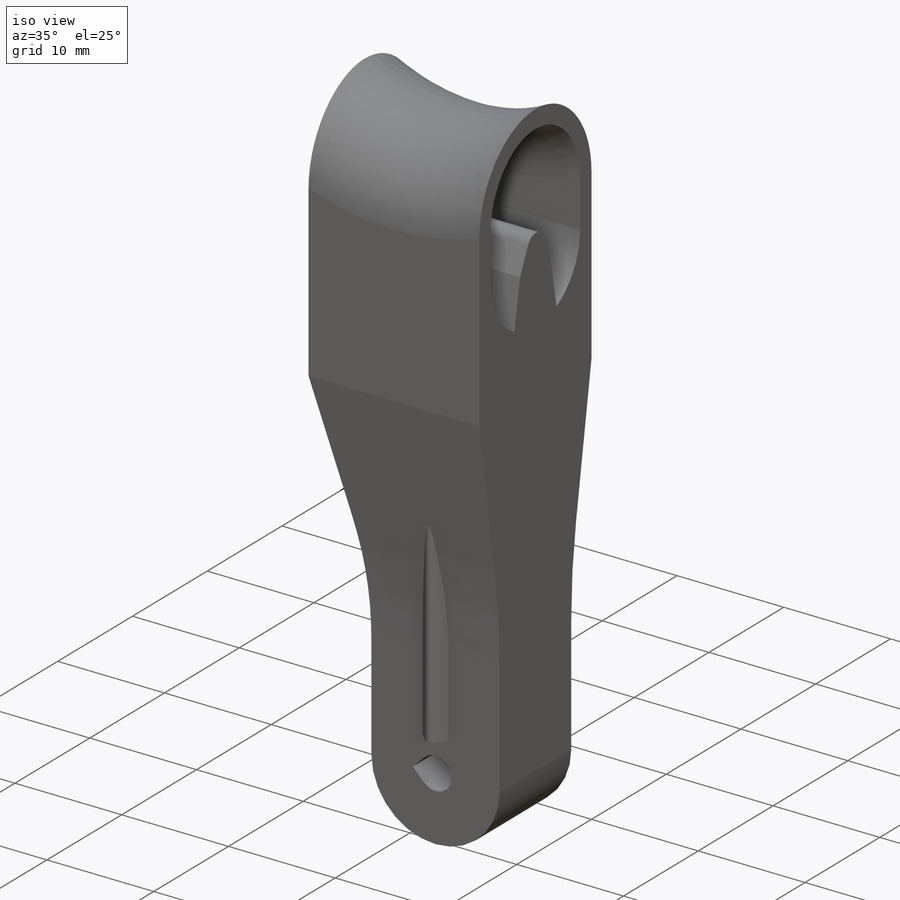
[diagram: iso view]
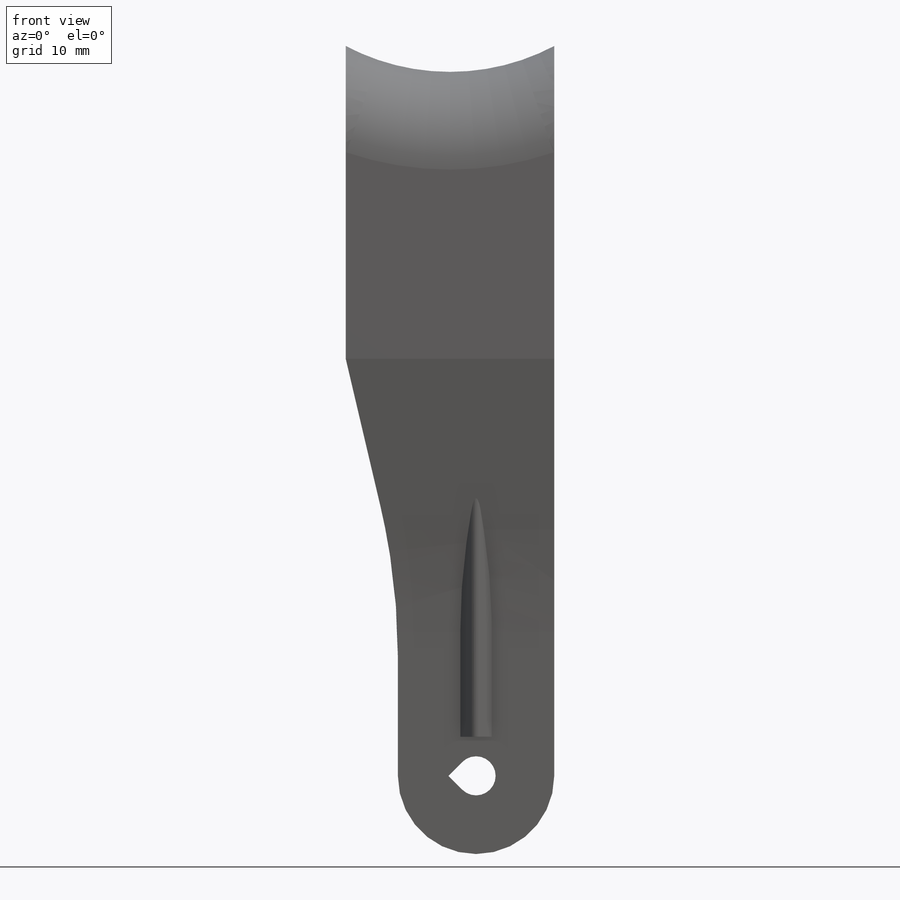
[diagram: front view]
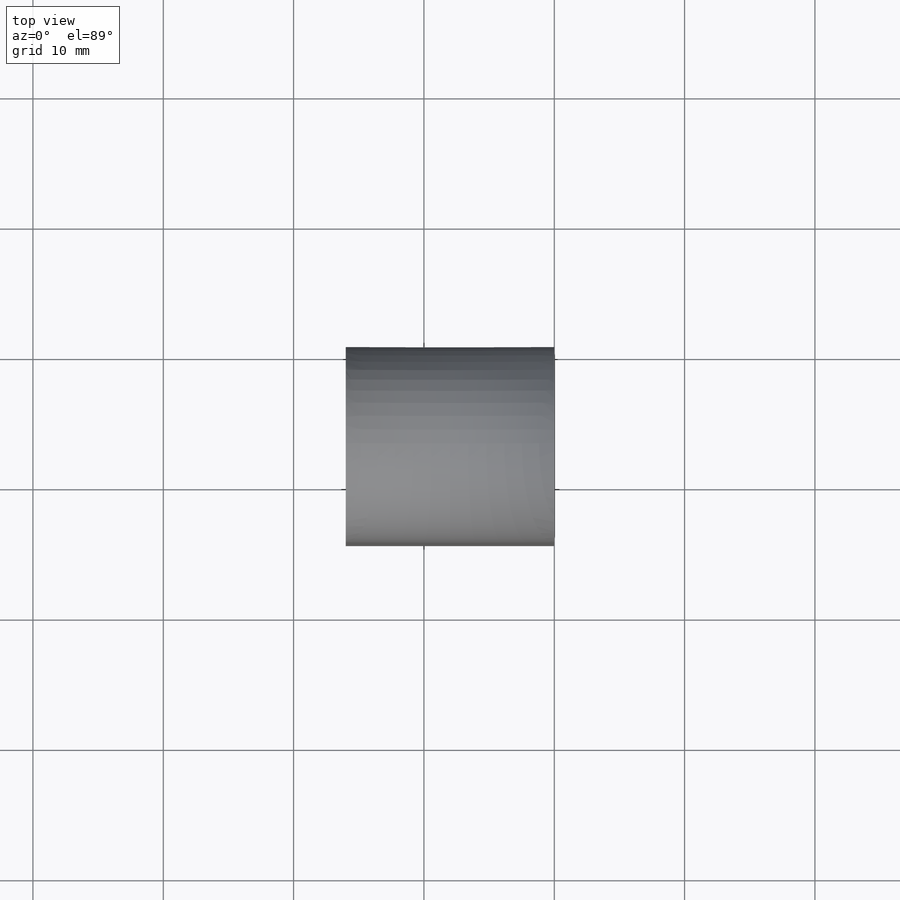
[diagram: top view]
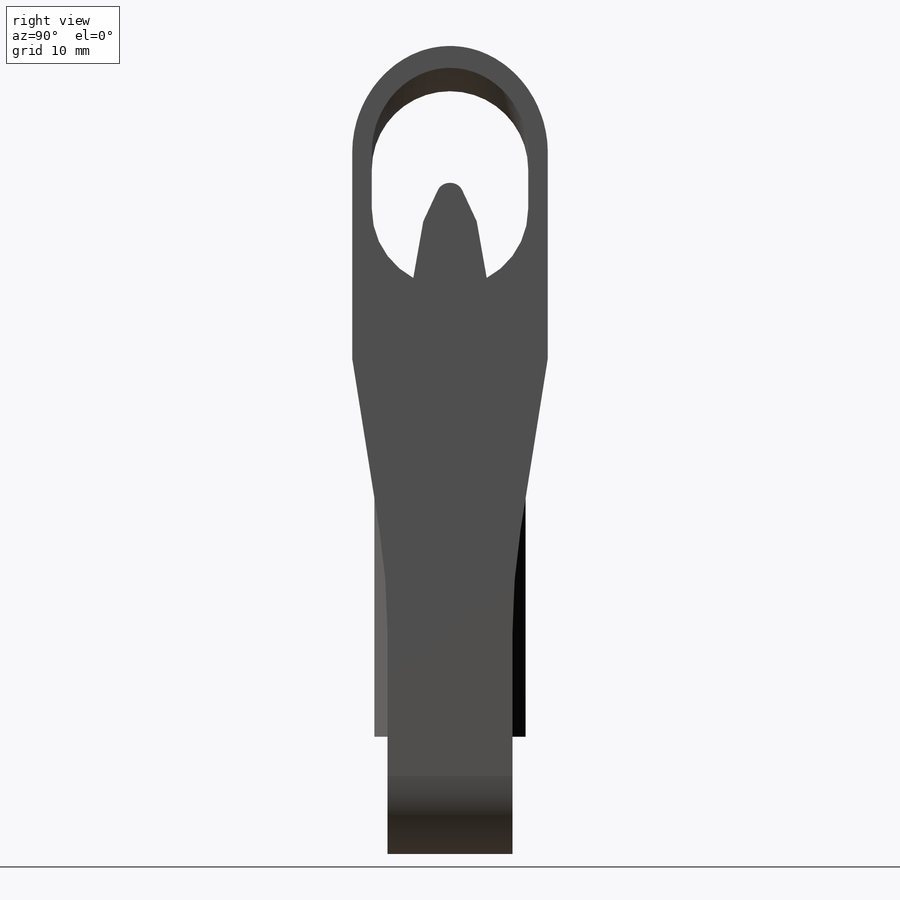
[diagram: right view]
SOLIDWORKS PART (.sldprt)
format: sldprt  version: not decoded by parser v0  size: 475,136 bytes
history: native  units: mm
features: sketch x13, cut_extrude x7, fillet x7, extrude x5, chamfer x2, mirror x2, material x1 (+11 scaffold rows collapsed)
feature tree (48):
  scaffold x11  (default folders/planes/origin — collapsed)
  material  "Material <not specified>"
  sketch  "Sketch1"  dims[c1.D1=60.0mm c1.D2=16.0mm c1.D3=15.0mm c1.D4=24.0mm c2.D1=56.0mm]
  extrude  "Boss-Extrude1"  Depth=15mm
  sketch  "Sketch3"  dims[D1=4.8mm]
  cut_extrude  "Cut-Extrude1"  Depth=15mm
  sketch  "3DSketch1"  dims[D1=1.5mm]
  sketch  "Sketch4"  dims[D1=1.5mm D2=1.5mm]
  cut_extrude  "Cut-Extrude2"  Depth=12mm
  fillet  "Fillet2"  Radius=6mm
  fillet  "Fillet3"  Radius=7.5mm
  fillet  "Fillet4"  Radius=50mm
  sketch  "Sketch5"  dims[D1=10.0mm D2=2.0mm D3=15.0mm]
  extrude  "Boss-Extrude2"  Depth=16mm
  chamfer  "Chamfer1"  Distance=10mm Angle=45deg
  sketch  "Sketch6"  dims[D1=3.0mm]
  cut_extrude  "Cut-Extrude3"  [1 undecoded]
  sketch  "Sketch7"  dims[D1=1.0mm D2=40.0mm D3=3.0mm]
  extrude  "Boss-Extrude3"  Depth=1mm
  fillet  "Fillet5"  Radius=0.5mm
  sketch  "Sketch9"
  extrude  "Boss-Extrude4"  Depth=8mm
  mirror  "Mirror3"
  sketch  "Sketch10"
  extrude  "Boss-Extrude5"  Depth=20mm
  mirror  "Mirror4"
  sketch  "Sketch11"  dims[D1=0.0mm]
  cut_extrude  "Cut-Extrude4"  Depth=8mm
  chamfer  "Chamfer4"  Distance=3mm Angle=15deg
  sketch  "Sketch12"
  cut_extrude  "Cut-Extrude5"  [1 undecoded]
  fillet  "Fillet7"  Radius=1mm
  fillet  "Fillet8"  Radius=1mm
  fillet  "Fillet9"  Radius=10mm
  sketch  "Sketch14"  dims[c1.D2=15.0mm c1.D3=3.0mm c1.D1=2.0mm c2.D2=2.0mm]
  cut_extrude  "Cut-Extrude7"  Depth=13mm
  sketch  "Sketch15"
  cut_extrude  "Cut-Extrude8"  Depth=10mm
decode coverage: 28 of 36 modeling features carry decoded parameters
note: 2 parameter values undecoded
note: suppression state not decoded; provenance and decode notes live in map.json
